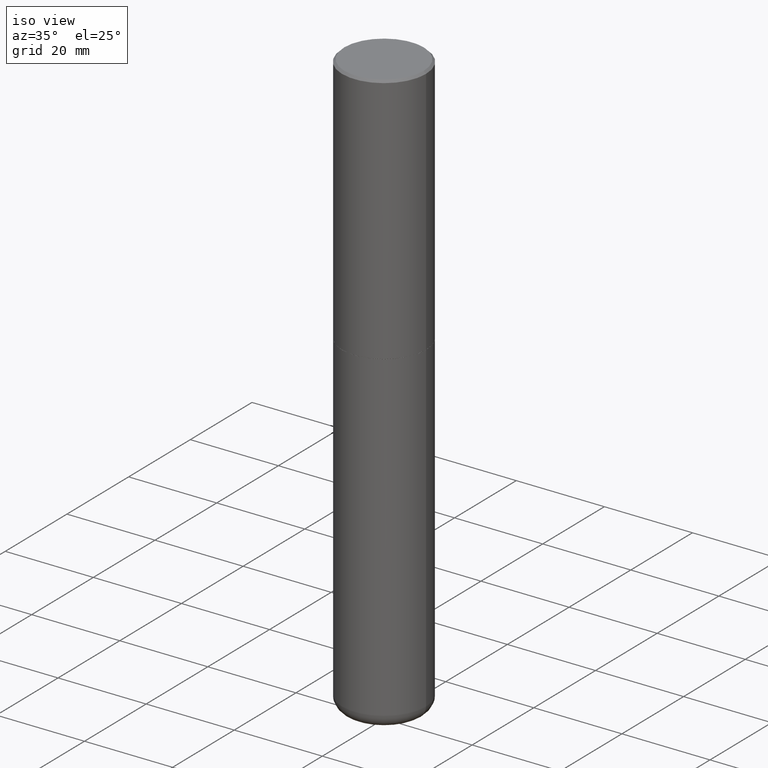
[diagram: clean part render]
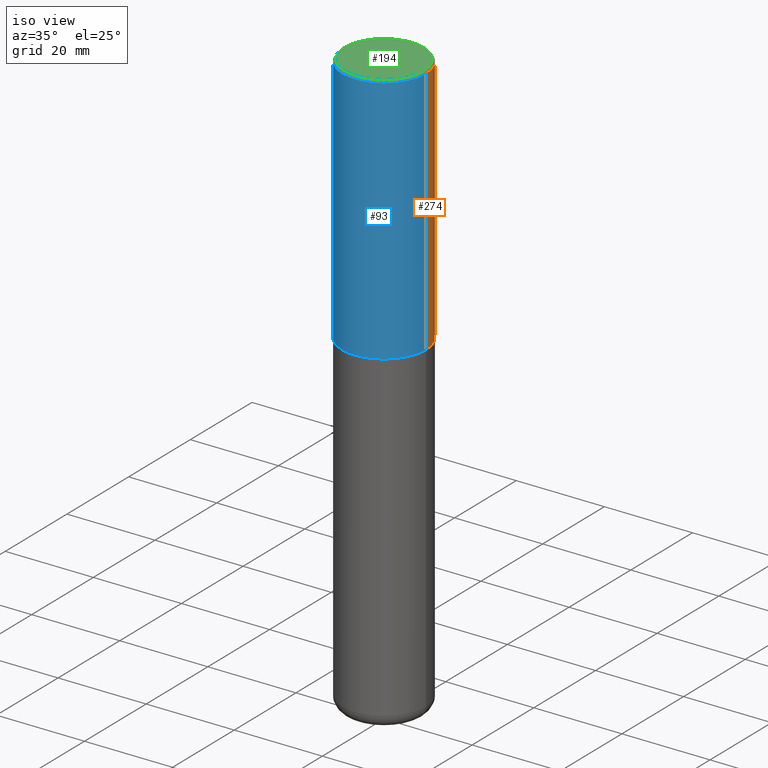
[diagram: same view with three faces highlighted in distinct colors, each labeled with its STEP entity id]
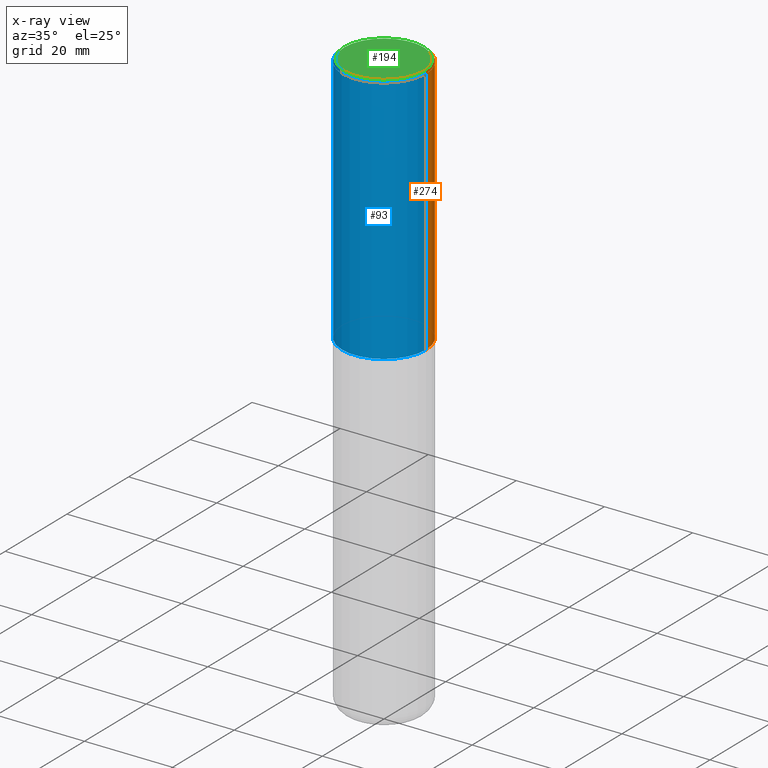
[diagram: x-ray of the same camera — body ghosted, the three highlighted faces saturated]
A machine part, iso view with three faces highlighted in distinct colors.
The next image is the same camera in x-ray (body ghosted, the three faces saturated) — at least one of them is partly hidden behind the body in this view.
Their STEP definitions:

[orange] entity #274 — the highlighted cylindrical surface (partial cylindrical patch) has radius 9.525 mm, axis along (-0, 0, 1).
#2 = CARTESIAN_POINT ( 'NONE',  ( 5.499859345110371740E-29, -7.852341531058233864E-15, -2.249000000000000110 ) ) ;
#13 = DIRECTION ( 'NONE',  ( 1.000000000000000000, -6.982962677686266711E-15, 4.876176775795935793E-29 ) ) ;
#16 = DIRECTION ( 'NONE',  ( 1.000000000000000000, -6.982962677686267499E-15, 0.000000000000000000 ) ) ;
#26 = ORIENTED_EDGE ( 'NONE', *, *, #273, .T. ) ;
#33 = VERTEX_POINT ( 'NONE', #72 ) ;
#41 = DIRECTION ( 'NONE',  ( -2.445468806185136597E-29, 3.491481338843145583E-15, 1.000000000000000000 ) ) ;
#46 = FACE_OUTER_BOUND ( 'NONE', #214, .T. ) ;
#69 = VERTEX_POINT ( 'NONE', #201 ) ;
#71 = DIRECTION ( 'NONE',  ( 1.000000000000000000, -6.982962677686265922E-15, 0.000000000000000000 ) ) ;
#72 = CARTESIAN_POINT ( 'NONE',  ( -0.3750000000000002776, -1.296550319817170517E-15, -2.249000000000000110 ) ) ;
#73 = AXIS2_PLACEMENT_3D ( 'NONE', #2, #41, #16 ) ;
#84 = DIRECTION ( 'NONE',  ( -2.445468806185136877E-29, 3.491481338843145188E-15, 1.000000000000000000 ) ) ;
#108 = CYLINDRICAL_SURFACE ( 'NONE', #116, 0.3750000000000002220 ) ;
#116 = AXIS2_PLACEMENT_3D ( 'NONE', #393, #131, #13 ) ;
#126 = CARTESIAN_POINT ( 'NONE',  ( -0.3750000000000001110, 2.548781377355487113E-15, -0.02000000000000008715 ) ) ;
#130 = ORIENTED_EDGE ( 'NONE', *, *, #408, .F. ) ;
#131 = DIRECTION ( 'NONE',  ( -2.445468806185136597E-29, 3.491481338843145583E-15, 1.000000000000000000 ) ) ;
#134 = CARTESIAN_POINT ( 'NONE',  ( 4.890937612370294178E-31, -6.982962677686321191E-17, -0.02000000000000008715 ) ) ;
#185 = CIRCLE ( 'NONE', #225, 0.3750000000000001110 ) ;
#200 = LINE ( 'NONE', #208, #217 ) ;
#201 = CARTESIAN_POINT ( 'NONE',  ( 0.3750000000000001110, -2.642516375941188423E-15, -0.02000000000000008715 ) ) ;
#202 = CARTESIAN_POINT ( 'NONE',  ( 0.3750000000000002776, -1.047095253519058704E-14, -2.249000000000000110 ) ) ;
#208 = CARTESIAN_POINT ( 'NONE',  ( 0.3750000000000002220, -2.618611004132351594E-15, 1.828566290923477043E-29 ) ) ;
#214 = EDGE_LOOP ( 'NONE', ( #26, #381, #281, #130 ) ) ;
#217 = VECTOR ( 'NONE', #84, 39.37007874015748143 ) ;
#225 = AXIS2_PLACEMENT_3D ( 'NONE', #134, #262, #71 ) ;
#262 = DIRECTION ( 'NONE',  ( -2.445468806185136597E-29, 3.491481338843145583E-15, 1.000000000000000000 ) ) ;
#273 = EDGE_CURVE ( 'NONE', #328, #33, #301, .T. ) ;
#274 = ADVANCED_FACE ( 'NONE', ( #46 ), #108, .T. ) ;
#281 = ORIENTED_EDGE ( 'NONE', *, *, #389, .F. ) ;
#301 = CIRCLE ( 'NONE', #73, 0.3750000000000002776 ) ;
#313 = VERTEX_POINT ( 'NONE', #126 ) ;
#321 = CARTESIAN_POINT ( 'NONE',  ( -0.3750000000000002220, 2.664535259100377275E-15, -1.844600658845590719E-29 ) ) ;
#328 = VERTEX_POINT ( 'NONE', #202 ) ;
#360 = LINE ( 'NONE', #321, #375 ) ;
#375 = VECTOR ( 'NONE', #404, 39.37007874015748143 ) ;
#381 = ORIENTED_EDGE ( 'NONE', *, *, #383, .T. ) ;
#383 = EDGE_CURVE ( 'NONE', #33, #313, #360, .T. ) ;
#389 = EDGE_CURVE ( 'NONE', #69, #313, #185, .T. ) ;
#393 = CARTESIAN_POINT ( 'NONE',  ( 0.000000000000000000, 0.000000000000000000, 0.000000000000000000 ) ) ;
#404 = DIRECTION ( 'NONE',  ( -2.445468806185136877E-29, 3.491481338843145188E-15, 1.000000000000000000 ) ) ;
#408 = EDGE_CURVE ( 'NONE', #328, #69, #200, .T. ) ;

[blue] entity #93 — the highlighted cylindrical surface (partial cylindrical patch) has radius 9.525 mm, axis along (-0, 0, 1).
#33 = VERTEX_POINT ( 'NONE', #72 ) ;
#49 = DIRECTION ( 'NONE',  ( 1.000000000000000000, -6.982962677686266711E-15, 4.876176775795935793E-29 ) ) ;
#56 = ORIENTED_EDGE ( 'NONE', *, *, #317, .T. ) ;
#59 = EDGE_CURVE ( 'NONE', #313, #69, #160, .T. ) ;
#69 = VERTEX_POINT ( 'NONE', #201 ) ;
#72 = CARTESIAN_POINT ( 'NONE',  ( -0.3750000000000002776, -1.296550319817170517E-15, -2.249000000000000110 ) ) ;
#77 = EDGE_LOOP ( 'NONE', ( #147, #56, #103, #400 ) ) ;
#84 = DIRECTION ( 'NONE',  ( -2.445468806185136877E-29, 3.491481338843145188E-15, 1.000000000000000000 ) ) ;
#93 = ADVANCED_FACE ( 'NONE', ( #100 ), #335, .T. ) ;
#100 = FACE_OUTER_BOUND ( 'NONE', #77, .T. ) ;
#103 = ORIENTED_EDGE ( 'NONE', *, *, #408, .T. ) ;
#126 = CARTESIAN_POINT ( 'NONE',  ( -0.3750000000000001110, 2.548781377355487113E-15, -0.02000000000000008715 ) ) ;
#127 = CIRCLE ( 'NONE', #373, 0.3750000000000002776 ) ;
#141 = AXIS2_PLACEMENT_3D ( 'NONE', #164, #288, #405 ) ;
#147 = ORIENTED_EDGE ( 'NONE', *, *, #383, .F. ) ;
#160 = CIRCLE ( 'NONE', #141, 0.3750000000000001110 ) ;
#164 = CARTESIAN_POINT ( 'NONE',  ( 4.890937612370294178E-31, -6.982962677686321191E-17, -0.02000000000000008715 ) ) ;
#190 = DIRECTION ( 'NONE',  ( -2.445468806185136597E-29, 3.491481338843145583E-15, 1.000000000000000000 ) ) ;
#200 = LINE ( 'NONE', #208, #217 ) ;
#201 = CARTESIAN_POINT ( 'NONE',  ( 0.3750000000000001110, -2.642516375941188423E-15, -0.02000000000000008715 ) ) ;
#202 = CARTESIAN_POINT ( 'NONE',  ( 0.3750000000000002776, -1.047095253519058704E-14, -2.249000000000000110 ) ) ;
#203 = DIRECTION ( 'NONE',  ( -2.445468806185136597E-29, 3.491481338843145583E-15, 1.000000000000000000 ) ) ;
#208 = CARTESIAN_POINT ( 'NONE',  ( 0.3750000000000002220, -2.618611004132351594E-15, 1.828566290923477043E-29 ) ) ;
#217 = VECTOR ( 'NONE', #84, 39.37007874015748143 ) ;
#268 = CARTESIAN_POINT ( 'NONE',  ( 5.499859345110371740E-29, -7.852341531058233864E-15, -2.249000000000000110 ) ) ;
#278 = AXIS2_PLACEMENT_3D ( 'NONE', #372, #203, #49 ) ;
#288 = DIRECTION ( 'NONE',  ( -2.445468806185136597E-29, 3.491481338843145583E-15, 1.000000000000000000 ) ) ;
#295 = DIRECTION ( 'NONE',  ( 1.000000000000000000, -6.982962677686267499E-15, 0.000000000000000000 ) ) ;
#313 = VERTEX_POINT ( 'NONE', #126 ) ;
#317 = EDGE_CURVE ( 'NONE', #33, #328, #127, .T. ) ;
#321 = CARTESIAN_POINT ( 'NONE',  ( -0.3750000000000002220, 2.664535259100377275E-15, -1.844600658845590719E-29 ) ) ;
#328 = VERTEX_POINT ( 'NONE', #202 ) ;
#335 = CYLINDRICAL_SURFACE ( 'NONE', #278, 0.3750000000000002220 ) ;
#360 = LINE ( 'NONE', #321, #375 ) ;
#372 = CARTESIAN_POINT ( 'NONE',  ( 0.000000000000000000, 0.000000000000000000, 0.000000000000000000 ) ) ;
#373 = AXIS2_PLACEMENT_3D ( 'NONE', #268, #190, #295 ) ;
#375 = VECTOR ( 'NONE', #404, 39.37007874015748143 ) ;
#383 = EDGE_CURVE ( 'NONE', #33, #313, #360, .T. ) ;
#400 = ORIENTED_EDGE ( 'NONE', *, *, #59, .F. ) ;
#404 = DIRECTION ( 'NONE',  ( -2.445468806185136877E-29, 3.491481338843145188E-15, 1.000000000000000000 ) ) ;
#405 = DIRECTION ( 'NONE',  ( 1.000000000000000000, -6.982962677686265922E-15, 0.000000000000000000 ) ) ;
#408 = EDGE_CURVE ( 'NONE', #328, #69, #200, .T. ) ;

[green] entity #194 — the highlighted planar face has unit normal (0, -0, -1).
#23 = CIRCLE ( 'NONE', #91, 0.3549999999999999822 ) ;
#53 = AXIS2_PLACEMENT_3D ( 'NONE', #327, #105, #68 ) ;
#65 = PLANE ( 'NONE',  #256 ) ;
#68 = DIRECTION ( 'NONE',  ( 1.000000000000000000, -6.982962677686265922E-15, 4.876231632511988183E-29 ) ) ;
#75 = DIRECTION ( 'NONE',  ( 1.000000000000000000, -6.982962677686265922E-15, 4.876231632511988183E-29 ) ) ;
#91 = AXIS2_PLACEMENT_3D ( 'NONE', #233, #367, #75 ) ;
#95 = DIRECTION ( 'NONE',  ( 2.438088387897960049E-29, -3.491481338843145188E-15, -1.000000000000000000 ) ) ;
#105 = DIRECTION ( 'NONE',  ( -2.445468806185136597E-29, 3.491481338843145583E-15, 1.000000000000000000 ) ) ;
#133 = DIRECTION ( 'NONE',  ( -1.000000000000000000, 6.982962677686265922E-15, -4.876176775795935793E-29 ) ) ;
#149 = ORIENTED_EDGE ( 'NONE', *, *, #260, .T. ) ;
#151 = VERTEX_POINT ( 'NONE', #255 ) ;
#188 = VERTEX_POINT ( 'NONE', #416 ) ;
#194 = ADVANCED_FACE ( 'NONE', ( #356 ), #65, .F. ) ;
#212 = EDGE_LOOP ( 'NONE', ( #228, #149 ) ) ;
#228 = ORIENTED_EDGE ( 'NONE', *, *, #336, .T. ) ;
#233 = CARTESIAN_POINT ( 'NONE',  ( -1.565777121502829671E-45, 2.235514755570671047E-31, 6.402768735150616610E-17 ) ) ;
#248 = CIRCLE ( 'NONE', #53, 0.3549999999999999822 ) ;
#255 = CARTESIAN_POINT ( 'NONE',  ( -0.3549999999999999822, 2.513866563967055464E-15, 6.402768735148871255E-17 ) ) ;
#256 = AXIS2_PLACEMENT_3D ( 'NONE', #391, #95, #133 ) ;
#260 = EDGE_CURVE ( 'NONE', #188, #151, #23, .T. ) ;
#327 = CARTESIAN_POINT ( 'NONE',  ( -1.565777121502829671E-45, 2.235514755570671047E-31, 6.402768735150616610E-17 ) ) ;
#336 = EDGE_CURVE ( 'NONE', #151, #188, #248, .T. ) ;
#356 = FACE_OUTER_BOUND ( 'NONE', #212, .T. ) ;
#367 = DIRECTION ( 'NONE',  ( -2.445468806185136597E-29, 3.491481338843145583E-15, 1.000000000000000000 ) ) ;
#391 = CARTESIAN_POINT ( 'NONE',  ( 2.478951750578624209E-15, 0.3549999999999999822, -1.207462031613563440E-15 ) ) ;
#416 = CARTESIAN_POINT ( 'NONE',  ( 0.3549999999999999822, -2.538996582575041048E-15, 6.402768735152371826E-17 ) ) ;